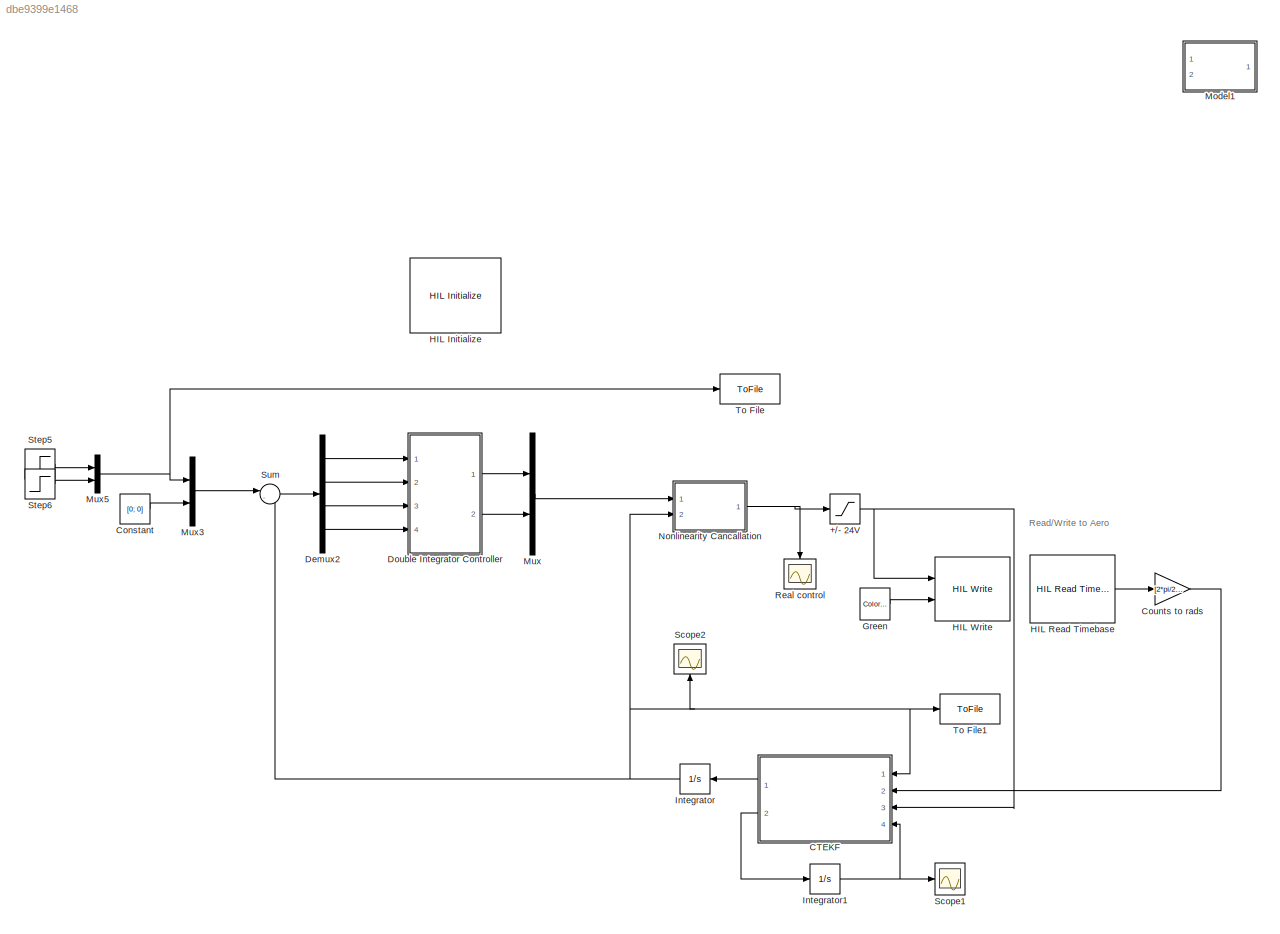
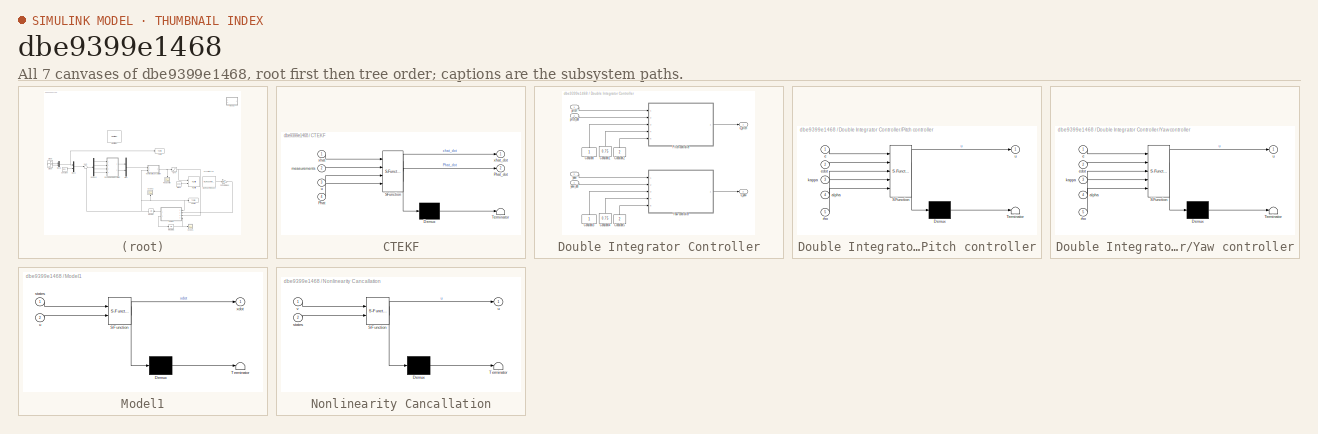
[diagram: thumbnail index - all 7 canvases of the model, root first then tree order]
MODEL slx_dbe9399e1468
KIND model
CONFIG AbsTol = auto
CONFIG EnableMultiTasking = on
CONFIG FixedStep = 0.002
CONFIG MaxStep = auto
CONFIG MinStep = auto
CONFIG PreLoadFcn = quanser_aero_lqr
CONFIG RelTol = 1e-3
CONFIG SampleTimeConstraint = Unconstrained
CONFIG SolverName = ode1
CONFIG StartTime = 0.0
CONFIG StopTime = 30
BLOCK [Saturate] +//- 24V
  LowerLimit = -24
  UpperLimit = 24
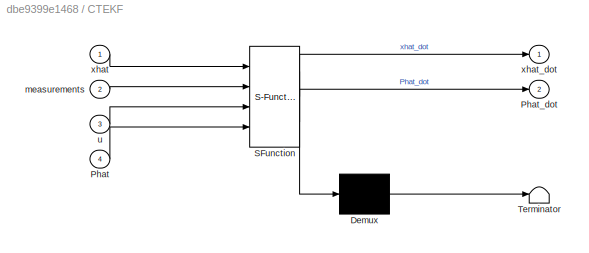
BLOCK [SubSystem] CTEKF
  ErrorFcn = Stateflow.Translate.translate
  NameLocation = top
  PermitHierarchicalResolution = ExplicitOnly
  Ports = [4, 2]
  RequestExecContextInheritance = off
  SFBlockType = MATLAB Function
  TreatAsAtomicUnit = on
BLOCK [Demux] CTEKF/ Demux 
  Outputs = 1
  Ports = [1, 1]
BLOCK [S-Function] CTEKF/ SFunction 
  EnableBusSupport = on
  FunctionName = sf_sfun
  PortCounts = [4 3]
  Ports = [4, 3]
  SFcnIsStateOwnerBlock = off
  SFunctionDeploymentMode = off
  Tag = Stateflow S-Function 15
BLOCK [Terminator] CTEKF/ Terminator 
BLOCK [Inport] CTEKF/Phat
  Port = 4
BLOCK [Outport] CTEKF/Phat_dot
  Port = 2
BLOCK [Inport] CTEKF/measurements
  Port = 2
BLOCK [Inport] CTEKF/u
  Port = 3
BLOCK [Inport] CTEKF/xhat
BLOCK [Outport] CTEKF/xhat_dot
BLOCK [Constant] Constant
  Value = [0; 0]
BLOCK [Gain] Counts to rads
  Gain = [2*pi/2048 2*pi/4096]
BLOCK [Demux] Demux2
  Ports = [1, 4]
BLOCK [SubSystem] Double Integrator Controller
  Ports = [4, 2]
  RequestExecContextInheritance = off
BLOCK [Constant] Double Integrator Controller/Constant
  NameLocation = right
BLOCK [Constant] Double Integrator Controller/Constant1
  NameLocation = right
  Value = 0.75
BLOCK [Constant] Double Integrator Controller/Constant2
  NameLocation = right
  Value = 2
BLOCK [Constant] Double Integrator Controller/Constant3
  NameLocation = right
BLOCK [Constant] Double Integrator Controller/Constant4
  NameLocation = right
  Value = 0.75
BLOCK [Constant] Double Integrator Controller/Constant5
  NameLocation = right
  Value = 2
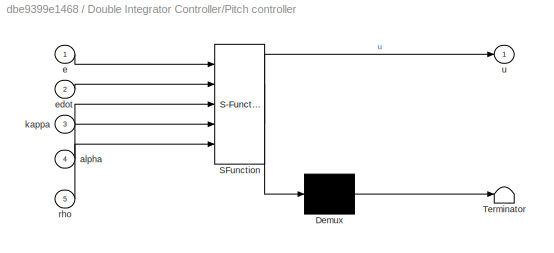
BLOCK [SubSystem] Double Integrator Controller/Pitch controller
  ErrorFcn = Stateflow.Translate.translate
  PermitHierarchicalResolution = ExplicitOnly
  Ports = [5, 1]
  RequestExecContextInheritance = off
  SFBlockType = MATLAB Function
  TreatAsAtomicUnit = on
BLOCK [Demux] Double Integrator Controller/Pitch controller/ Demux 
  Outputs = 1
  Ports = [1, 1]
BLOCK [S-Function] Double Integrator Controller/Pitch controller/ SFunction 
  EnableBusSupport = on
  FunctionName = sf_sfun
  PortCounts = [5 2]
  Ports = [5, 2]
  SFcnIsStateOwnerBlock = off
  SFunctionDeploymentMode = off
  Tag = Stateflow S-Function 10
BLOCK [Terminator] Double Integrator Controller/Pitch controller/ Terminator 
BLOCK [Inport] Double Integrator Controller/Pitch controller/alpha
  Port = 4
BLOCK [Inport] Double Integrator Controller/Pitch controller/e
BLOCK [Inport] Double Integrator Controller/Pitch controller/edot
  Port = 2
BLOCK [Inport] Double Integrator Controller/Pitch controller/kappa
  Port = 3
BLOCK [Inport] Double Integrator Controller/Pitch controller/rho
  Port = 5
BLOCK [Outport] Double Integrator Controller/Pitch controller/u
BLOCK [SubSystem] Double Integrator Controller/Yaw controller
  ErrorFcn = Stateflow.Translate.translate
  PermitHierarchicalResolution = ExplicitOnly
  Ports = [5, 1]
  RequestExecContextInheritance = off
  SFBlockType = MATLAB Function
  TreatAsAtomicUnit = on
BLOCK [Demux] Double Integrator Controller/Yaw controller/ Demux 
  Outputs = 1
  Ports = [1, 1]
BLOCK [S-Function] Double Integrator Controller/Yaw controller/ SFunction 
  EnableBusSupport = on
  FunctionName = sf_sfun
  PortCounts = [5 2]
  Ports = [5, 2]
  SFcnIsStateOwnerBlock = off
  SFunctionDeploymentMode = off
  Tag = Stateflow S-Function 5
BLOCK [Terminator] Double Integrator Controller/Yaw controller/ Terminator 
BLOCK [Inport] Double Integrator Controller/Yaw controller/alpha
  Port = 4
BLOCK [Inport] Double Integrator Controller/Yaw controller/e
BLOCK [Inport] Double Integrator Controller/Yaw controller/edot
  Port = 2
BLOCK [Inport] Double Integrator Controller/Yaw controller/kappa
  Port = 3
BLOCK [Inport] Double Integrator Controller/Yaw controller/rho
  Port = 5
BLOCK [Outport] Double Integrator Controller/Yaw controller/u
BLOCK [Inport] Double Integrator Controller/pitch
BLOCK [Inport] Double Integrator Controller/pitch_dot
  Port = 3
BLOCK [Outport] Double Integrator Controller/v_pitch
BLOCK [Outport] Double Integrator Controller/v_yaw
  Port = 2
BLOCK [Inport] Double Integrator Controller/yaw
  Port = 2
BLOCK [Inport] Double Integrator Controller/yaw_dot
  Port = 4
BLOCK [Reference] Green  REF=quarc_library/Sources/Signals/Color Constant
  Ports = [0, 1]
  SourceBlock = quarc_library/Sources/Signals/Color Constant
  SourceProductName = QUARC Targets
  SourceType = Color Constant
BLOCK [Reference] HIL Initialize  REF=quarc_library/Data Acquisition/Generic/Configuration/HIL Initialize
  AttributesFormatString = %<object_name> (%<board_type>-%<board_number>)
  Ports = []
  Priority = -99
  SourceBlock = quarc_library/Data Acquisition/Generic/Configuration/HIL Initialize
  SourceProductName = QUARC Targets
  SourceType = HIL Initialize
  UserDataPersistent = on
BLOCK [Reference] HIL Read Timebase  REF=quarc_library/Data Acquisition/Generic/Timebases/HIL Read
Timebase
  AttributesFormatString = (%<object_name>)
  Ports = [0, 3]
  SourceBlock = quarc_library/Data Acquisition/Generic/Timebases/HIL Read\nTimebase
  SourceProductName = QUARC Targets
  SourceType = HIL Read Timebase
  UserDataPersistent = on
BLOCK [Reference] HIL Write  REF=quarc_library/Data Acquisition/Generic/Immediate I//O/HIL Write
  AttributesFormatString = (%<object_name>)
  Ports = [2]
  SourceBlock = quarc_library/Data Acquisition/Generic/Immediate I//O/HIL Write
  SourceProductName = QUARC Targets
  SourceType = HIL Write
  UserDataPersistent = on
BLOCK [Integrator] Integrator
  InitialCondition = [0;0;0;0]
  NameLocation = top
  Ports = [1, 1]
BLOCK [Integrator] Integrator1
  InitialCondition = zeros(4)
  Ports = [1, 1]
BLOCK [SubSystem] Model1
  Commented = on
  ErrorFcn = Stateflow.Translate.translate
  PermitHierarchicalResolution = ExplicitOnly
  Ports = [2, 1]
  RequestExecContextInheritance = off
  SFBlockType = MATLAB Function
  TreatAsAtomicUnit = on
BLOCK [Demux] Model1/ Demux 
  Outputs = 1
  Ports = [1, 1]
BLOCK [S-Function] Model1/ SFunction 
  EnableBusSupport = on
  FunctionName = sf_sfun
  PortCounts = [2 2]
  Ports = [2, 2]
  SFcnIsStateOwnerBlock = off
  SFunctionDeploymentMode = off
  Tag = Stateflow S-Function 3
BLOCK [Terminator] Model1/ Terminator 
BLOCK [Inport] Model1/states
BLOCK [Inport] Model1/u
  Port = 2
BLOCK [Outport] Model1/xdot
BLOCK [Mux] Mux
  DisplayOption = bar
  Inputs = 2
  Ports = [2, 1]
BLOCK [Mux] Mux3
  DisplayOption = bar
  Inputs = 2
  Ports = [2, 1]
BLOCK [Mux] Mux5
  DisplayOption = bar
  Inputs = 2
  Ports = [2, 1]
BLOCK [SubSystem] Nonlinearity Cancallation
  ErrorFcn = Stateflow.Translate.translate
  PermitHierarchicalResolution = ExplicitOnly
  Ports = [2, 1]
  RequestExecContextInheritance = off
  SFBlockType = MATLAB Function
  TreatAsAtomicUnit = on
BLOCK [Demux] Nonlinearity Cancallation/ Demux 
  Outputs = 1
  Ports = [1, 1]
BLOCK [S-Function] Nonlinearity Cancallation/ SFunction 
  EnableBusSupport = on
  FunctionName = sf_sfun
  PortCounts = [2 2]
  Ports = [2, 2]
  SFcnIsStateOwnerBlock = off
  SFunctionDeploymentMode = off
  Tag = Stateflow S-Function 4
BLOCK [Terminator] Nonlinearity Cancallation/ Terminator 
BLOCK [Inport] Nonlinearity Cancallation/states
  Port = 2
BLOCK [Outport] Nonlinearity Cancallation/u
BLOCK [Inport] Nonlinearity Cancallation/v
BLOCK [Scope] Real control
  Floating = off
  NameLocation = left
  NumInputPorts = 1
  Ports = [1]
  ScopeSpecificationString = Simulink.scopes.TimeScopeBlockCfg('CurrentConfiguration', extmgr.ConfigurationSet(extmgr.Configuration('Core','General UI',true),extmgr.Configuration('Core','Source UI',true),extmgr.Configuration('Sources','WiredSimulink',true,'DataLoggingVariableName','ScopeData2'),extmgr.Configuration('Visuals','Time Domain',true,'SerializedDisplays',{struct('MinYLimReal','-21.10304','MaxYLimReal','20.60711','YL...<+1464ch>
BLOCK [Scope] Scope1
  Floating = off
  NumInputPorts = 1
  Ports = [1]
  ScopeSpecificationString = Simulink.scopes.TimeScopeBlockCfg('CurrentConfiguration', extmgr.ConfigurationSet(extmgr.Configuration('Core','General UI',true),extmgr.Configuration('Core','Source UI',true),extmgr.Configuration('Sources','WiredSimulink',true,'DataLoggingVariableName','ScopeData1'),extmgr.Configuration('Visuals','Time Domain',true,'SerializedDisplays',{struct('MinYLimReal','-0.00677','MaxYLimReal','0.06092','YLab...<+1650ch>
BLOCK [Scope] Scope2
  Floating = off
  NameLocation = right
  NumInputPorts = 1
  Ports = [1]
  ScopeSpecificationString = Simulink.scopes.TimeScopeBlockCfg('CurrentConfiguration', extmgr.ConfigurationSet(extmgr.Configuration('Core','General UI',true),extmgr.Configuration('Core','Source UI',true),extmgr.Configuration('Sources','WiredSimulink',true,'DataLoggingVariableName','ScopeData1'),extmgr.Configuration('Visuals','Time Domain',true,'SerializedDisplays',{struct('MinYLimReal','-5.87837','MaxYLimReal','6.08811','YLab...<+1388ch>
BLOCK [Step] Step5
  After = pi/6
  SampleTime = 0
  Time = 5
BLOCK [Step] Step6
  After = pi/4
  SampleTime = 0
  Time = 5
BLOCK [Sum] Sum
  Inputs = |-+
  Ports = [2, 1]
BLOCK [ToFile] To File
  Filename = reference.mat
  Ports = [1]
BLOCK [ToFile] To File1
  Filename = kalman_filter_estimates.mat
  MatrixName = kalman_filter_estimates
  Ports = [1]
ANNOTATION (root): Read/Write to Aero
NET +//- 24V:1 -> CTEKF:3, HIL Write:1
LINE CTEKF:1 -> Integrator:1
LINE CTEKF:2 -> Integrator1:1
LINE Constant:1 -> Mux3:2
LINE Counts to rads:1 -> CTEKF:2
LINE Demux2:1 -> Double Integrator Controller:1
LINE Demux2:2 -> Double Integrator Controller:2
LINE Demux2:3 -> Double Integrator Controller:3
LINE Demux2:4 -> Double Integrator Controller:4
LINE Double Integrator Controller/Constant1:1 -> Double Integrator Controller/Pitch controller:4
LINE Double Integrator Controller/Constant2:1 -> Double Integrator Controller/Pitch controller:5
LINE Double Integrator Controller/Constant3:1 -> Double Integrator Controller/Yaw controller:3
LINE Double Integrator Controller/Constant4:1 -> Double Integrator Controller/Yaw controller:4
LINE Double Integrator Controller/Constant5:1 -> Double Integrator Controller/Yaw controller:5
LINE Double Integrator Controller/Constant:1 -> Double Integrator Controller/Pitch controller:3
LINE Double Integrator Controller/Pitch controller:1 -> Double Integrator Controller/v_pitch:1
LINE Double Integrator Controller/Yaw controller:1 -> Double Integrator Controller/v_yaw:1
LINE Double Integrator Controller/pitch:1 -> Double Integrator Controller/Pitch controller:1
LINE Double Integrator Controller/pitch_dot:1 -> Double Integrator Controller/Pitch controller:2
LINE Double Integrator Controller/yaw:1 -> Double Integrator Controller/Yaw controller:1
LINE Double Integrator Controller/yaw_dot:1 -> Double Integrator Controller/Yaw controller:2
LINE Double Integrator Controller:1 -> Mux:1
LINE Double Integrator Controller:2 -> Mux:2
LINE Green:1 -> HIL Write:2
LINE HIL Read Timebase:2 -> Counts to rads:1
NET Integrator1:1 -> CTEKF:4, Scope1:1
NET Integrator:1 -> CTEKF:1, Nonlinearity Cancallation:2, Scope2:1, Sum:2, To File1:1
LINE Mux3:1 -> Sum:1
NET Mux5:1 -> Mux3:1, To File:1
LINE Mux:1 -> Nonlinearity Cancallation:1
NET Nonlinearity Cancallation:1 -> +//- 24V:1, Real control:1
LINE Step5:1 -> Mux5:1
LINE Step6:1 -> Mux5:2
LINE Sum:1 -> Demux2:1
note: NET lines group one-source signal fan-out (src -> all destinations, sorted); 1:1 wires keep LINE
CHART Model1 states=1 transitions=1
  STATE_LABEL 'eML_blk_kernel()'
  STATE_LABEL 'SCRIPT:\nfunction xdot = QuanserAeroKumar(states, u)\n    pitch = states(1);\n%     yaw = states(2);\n    pitch_dot = states(3);\n    yaw_dot = states(4);\n\n    g = 9.81;\n\n    Jp = 2.15e-2;\n    Jy = 2.37e-2;\n    dc = 3.25e-3;\n    dt = 0.158;\n    mb = 1.075;\n       \n    Rm = 8.4;\n    kt = 0.042;\n    km = 0.042;\n    kd = 1e-5;\n    \n    Kpp = 0.0011;                                                         ...<+3608ch>'
CHART Nonlinearity Cancallation states=1 transitions=1
  STATE_LABEL 'eML_blk_kernel()'
  STATE_LABEL 'SCRIPT:\nfunction u = NonlinearityCancellation(v, states)\n    theta = states(1);\n    psi = states(2);\n    thetadot = states(3);\n    psidot = states(4);\n    \n    % parameters\n    g = 9.81;\n    dt = 0.158;\n    me = 0.2;\n    dx = 0.016;\n    \n    ry = 0.02;\n    my = 0.526;\n    \n    mpa = 0.146;\n    lt = 0.165;\n    mmt = 0.089;\n    mtt = 0.089;\n    mtc = 0.280;\n    mrod = mmt + mtt + mtc;\n    \n    Ibyy ...<+854ch>'
CHART Double Integrator Controller/Yaw controller states=1 transitions=1
  STATE_LABEL 'eML_blk_kernel()'
  STATE_LABEL 'SCRIPT:\nfunction u = HomogeneousFiniteTimeController(e, edot, kappa, alpha, rho)\n    % u = HomogeneousFiniteTimeController(e, edot, kappa, alpha, rho) computes\n    % the feedback control for an orbital terminal sliding mode controller \n    % given the parameters kappa, alpha and rho.\n    % See Sætre (2022) p. 56 for a derivation of the controller:\n    % - https://ntnuopen.ntnu.no/ntnu-xmlui/handle...<+318ch>'
CHART Double Integrator Controller/Pitch controller states=1 transitions=1
  STATE_LABEL 'eML_blk_kernel()'
  STATE_LABEL 'SCRIPT:\nfunction u = HomogeneousFiniteTimeController(e, edot, kappa, alpha, rho)\n    % u = HomogeneousFiniteTimeController(e, edot, kappa, alpha, rho) computes\n    % the feedback control for an orbital terminal sliding mode controller \n    % given the parameters kappa, alpha and rho.\n    % See Sætre (2022) p. 56 for a derivation of the controller:\n    % - https://ntnuopen.ntnu.no/ntnu-xmlui/handle...<+318ch>'
CHART CTEKF states=1 transitions=1
  STATE_LABEL 'eML_blk_kernel()'
  STATE_LABEL 'SCRIPT:\nfunction [xhat_dot, Phat_dot] = ExtendedKalmanFilter(xhat, measurements, u, Phat)\n    theta = xhat(1);\n    psi = xhat(2);\n    thetadot = xhat(3);\n    psidot = xhat(4);\n    \n    utilde = u.^2;\n    utilde1 = utilde(1);\n    utilde2 = utilde(2);\n    \n    %R = diag([2.36e-6; 5.8974e-07]);\n    R = eye(2);\n    Q = diag([0; 0; 1; 1]);\n\n    % parameters\n    g = 9.81;\n    dt = 0.158;\n    me = 0.2;\n ...<+3482ch>'
CHART  states=0 transitions=0
CHART  states=0 transitions=0
CHART  states=0 transitions=0
CHART  states=0 transitions=0
CHART  states=0 transitions=0
